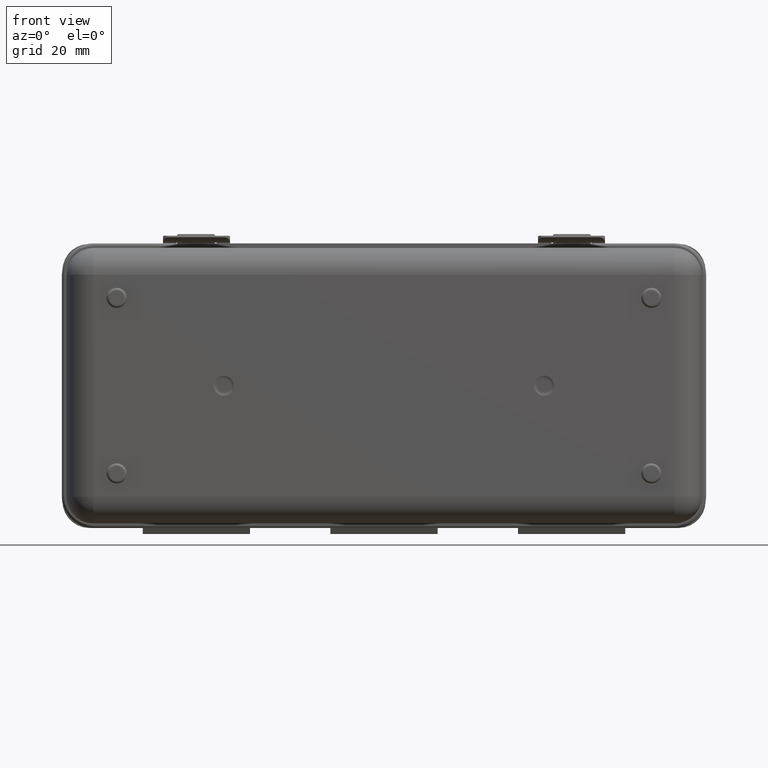
[diagram: clean part render]
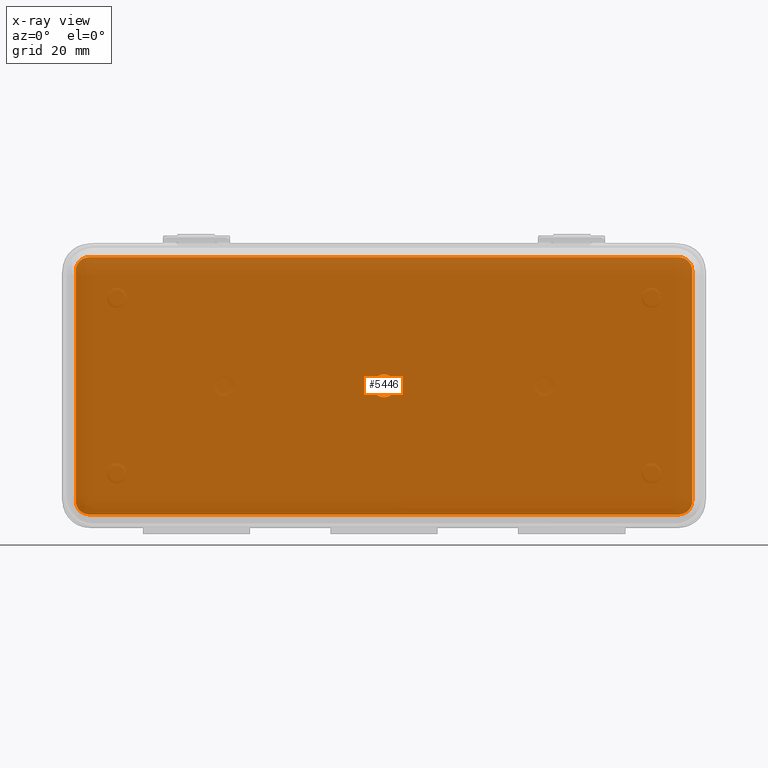
[diagram: x-ray — body ghosted, one internal face saturated and labeled with its STEP entity id]
A machine part, front view, then the same camera in x-ray: the body is ghosted and one INTERNAL B-rep face — a face not visible from any outside direction — is saturated and labeled: STEP entity #5446.
In plain terms, the highlighted planar face has unit normal (0, 1, 0).
Its self-contained STEP definition (entity closure, byte-faithful):
#98 = AXIS2_PLACEMENT_3D ( 'NONE', #7730, #4206, #444 ) ;
#216 = DIRECTION ( 'NONE',  ( 1.000000000000000000, 0.0000000000000000000, 0.0000000000000000000 ) ) ;
#444 = DIRECTION ( 'NONE',  ( 0.0000000000000000000, 0.0000000000000000000, -1.000000000000000000 ) ) ;
#549 = VECTOR ( 'NONE', #2951, 1000.000000000000000 ) ;
#618 = EDGE_CURVE ( 'NONE', #5555, #9155, #6171, .T. ) ;
#721 = VECTOR ( 'NONE', #6559, 1000.000000000000000 ) ;
#853 = CIRCLE ( 'NONE', #5448, 5.000000000000004441 ) ;
#937 = DIRECTION ( 'NONE',  ( 0.0000000000000000000, 0.0000000000000000000, -1.000000000000000000 ) ) ;
#972 = CARTESIAN_POINT ( 'NONE',  ( -115.0000000000000000, 1.399999999999999911, 43.00000000000000000 ) ) ;
#1058 = ORIENTED_EDGE ( 'NONE', *, *, #8441, .F. ) ;
#1185 = EDGE_CURVE ( 'NONE', #1956, #8203, #6481, .T. ) ;
#1240 = EDGE_CURVE ( 'NONE', #5655, #3201, #4703, .T. ) ;
#1301 = AXIS2_PLACEMENT_3D ( 'NONE', #5644, #2167, #5007 ) ;
#1679 = VERTEX_POINT ( 'NONE', #4241 ) ;
#1681 = ORIENTED_EDGE ( 'NONE', *, *, #2088, .F. ) ;
#1887 = DIRECTION ( 'NONE',  ( 0.0000000000000000000, 0.0000000000000000000, -1.000000000000000000 ) ) ;
#1930 = EDGE_CURVE ( 'NONE', #1679, #4632, #853, .T. ) ;
#1948 = ORIENTED_EDGE ( 'NONE', *, *, #3414, .F. ) ;
#1956 = VERTEX_POINT ( 'NONE', #9030 ) ;
#2088 = EDGE_CURVE ( 'NONE', #9155, #3576, #8654, .T. ) ;
#2167 = DIRECTION ( 'NONE',  ( 0.0000000000000000000, -1.000000000000000000, 0.0000000000000000000 ) ) ;
#2273 = LINE ( 'NONE', #8849, #6907 ) ;
#2589 = EDGE_CURVE ( 'NONE', #8203, #1956, #4727, .T. ) ;
#2765 = VERTEX_POINT ( 'NONE', #4510 ) ;
#2821 = ORIENTED_EDGE ( 'NONE', *, *, #1930, .F. ) ;
#2951 = DIRECTION ( 'NONE',  ( 0.0000000000000000000, -0.0000000000000000000, -1.000000000000000000 ) ) ;
#3059 = AXIS2_PLACEMENT_3D ( 'NONE', #5395, #8228, #937 ) ;
#3201 = VERTEX_POINT ( 'NONE', #5337 ) ;
#3267 = FACE_OUTER_BOUND ( 'NONE', #6236, .T. ) ;
#3271 = DIRECTION ( 'NONE',  ( 0.0000000000000000000, 0.0000000000000000000, -1.000000000000000000 ) ) ;
#3312 = CARTESIAN_POINT ( 'NONE',  ( -110.0000000000000000, 1.400000000000000133, -43.00000000000000000 ) ) ;
#3414 = EDGE_CURVE ( 'NONE', #3576, #2765, #5055, .T. ) ;
#3555 = CARTESIAN_POINT ( 'NONE',  ( 110.0000000000000000, 1.400000000000000133, 43.00000000000000000 ) ) ;
#3558 = VECTOR ( 'NONE', #216, 1000.000000000000000 ) ;
#3576 = VERTEX_POINT ( 'NONE', #7020 ) ;
#3730 = CARTESIAN_POINT ( 'NONE',  ( 114.9999999999999858, 1.399999999999999911, 0.0000000000000000000 ) ) ;
#3949 = CARTESIAN_POINT ( 'NONE',  ( 0.0000000000000000000, 1.399999999999999911, -48.00000000000000000 ) ) ;
#4032 = DIRECTION ( 'NONE',  ( 0.0000000000000000000, 0.0000000000000000000, -1.000000000000000000 ) ) ;
#4206 = DIRECTION ( 'NONE',  ( 0.0000000000000000000, -1.000000000000000000, 0.0000000000000000000 ) ) ;
#4241 = CARTESIAN_POINT ( 'NONE',  ( 114.9999999999999858, 1.399999999999999911, 43.00000000000000000 ) ) ;
#4510 = CARTESIAN_POINT ( 'NONE',  ( -110.0000000000000000, 1.399999999999999911, -48.00000000000000000 ) ) ;
#4632 = VERTEX_POINT ( 'NONE', #5635 ) ;
#4703 = CIRCLE ( 'NONE', #98, 5.000000000000004441 ) ;
#4727 = CIRCLE ( 'NONE', #1301, 4.250000000000000000 ) ;
#4968 = CARTESIAN_POINT ( 'NONE',  ( 109.9999999999999858, 1.399999999999999911, -48.00000000000000000 ) ) ;
#5007 = DIRECTION ( 'NONE',  ( 0.0000000000000000000, 0.0000000000000000000, -1.000000000000000000 ) ) ;
#5055 = CIRCLE ( 'NONE', #8158, 4.999999999999997335 ) ;
#5107 = DIRECTION ( 'NONE',  ( -1.000000000000000000, -0.0000000000000000000, -0.0000000000000000000 ) ) ;
#5218 = CARTESIAN_POINT ( 'NONE',  ( 0.0000000000000000000, 1.399999999999999911, 0.0000000000000000000 ) ) ;
#5240 = EDGE_LOOP ( 'NONE', ( #8758, #7732 ) ) ;
#5309 = DIRECTION ( 'NONE',  ( 0.0000000000000000000, -1.000000000000000000, 0.0000000000000000000 ) ) ;
#5337 = CARTESIAN_POINT ( 'NONE',  ( 114.9999999999999858, 1.399999999999999911, -43.00000000000000000 ) ) ;
#5343 = LINE ( 'NONE', #3949, #3558 ) ;
#5371 = DIRECTION ( 'NONE',  ( 0.0000000000000000000, -1.000000000000000000, 0.0000000000000000000 ) ) ;
#5395 = CARTESIAN_POINT ( 'NONE',  ( -110.0000000000000000, 1.400000000000000133, 43.00000000000000000 ) ) ;
#5446 = ADVANCED_FACE ( 'NONE', ( #6800, #3267 ), #5993, .F. ) ;
#5448 = AXIS2_PLACEMENT_3D ( 'NONE', #3555, #5371, #4032 ) ;
#5555 = VERTEX_POINT ( 'NONE', #6848 ) ;
#5635 = CARTESIAN_POINT ( 'NONE',  ( 109.9999999999999858, 1.400000000000000133, 48.00000000000000000 ) ) ;
#5644 = CARTESIAN_POINT ( 'NONE',  ( 0.0000000000000000000, 1.399999999999999911, 0.0000000000000000000 ) ) ;
#5655 = VERTEX_POINT ( 'NONE', #4968 ) ;
#5669 = EDGE_CURVE ( 'NONE', #3201, #1679, #8642, .T. ) ;
#5790 = EDGE_CURVE ( 'NONE', #2765, #5655, #5343, .T. ) ;
#5993 = PLANE ( 'NONE',  #8425 ) ;
#6079 = ORIENTED_EDGE ( 'NONE', *, *, #618, .F. ) ;
#6093 = DIRECTION ( 'NONE',  ( 0.0000000000000000000, -0.0000000000000000000, -1.000000000000000000 ) ) ;
#6171 = CIRCLE ( 'NONE', #3059, 5.000000000000004441 ) ;
#6236 = EDGE_LOOP ( 'NONE', ( #7080, #7725, #6744, #1948, #1681, #6079, #1058, #2821 ) ) ;
#6481 = CIRCLE ( 'NONE', #7520, 4.250000000000000000 ) ;
#6559 = DIRECTION ( 'NONE',  ( -0.0000000000000000000, 0.0000000000000000000, 1.000000000000000000 ) ) ;
#6744 = ORIENTED_EDGE ( 'NONE', *, *, #5790, .F. ) ;
#6800 = FACE_BOUND ( 'NONE', #5240, .T. ) ;
#6848 = CARTESIAN_POINT ( 'NONE',  ( -110.0000000000000000, 1.399999999999999911, 48.00000000000000000 ) ) ;
#6907 = VECTOR ( 'NONE', #5107, 1000.000000000000000 ) ;
#7020 = CARTESIAN_POINT ( 'NONE',  ( -114.9999999999999858, 1.399999999999999911, -43.00000000000000000 ) ) ;
#7080 = ORIENTED_EDGE ( 'NONE', *, *, #5669, .F. ) ;
#7171 = CARTESIAN_POINT ( 'NONE',  ( -115.0000000000000000, 1.399999999999999911, 0.0000000000000000000 ) ) ;
#7520 = AXIS2_PLACEMENT_3D ( 'NONE', #8245, #8989, #1887 ) ;
#7725 = ORIENTED_EDGE ( 'NONE', *, *, #1240, .F. ) ;
#7730 = CARTESIAN_POINT ( 'NONE',  ( 109.9999999999999858, 1.400000000000000133, -43.00000000000000000 ) ) ;
#7732 = ORIENTED_EDGE ( 'NONE', *, *, #1185, .T. ) ;
#8158 = AXIS2_PLACEMENT_3D ( 'NONE', #3312, #8750, #3271 ) ;
#8203 = VERTEX_POINT ( 'NONE', #9188 ) ;
#8228 = DIRECTION ( 'NONE',  ( 0.0000000000000000000, -1.000000000000000000, 0.0000000000000000000 ) ) ;
#8245 = CARTESIAN_POINT ( 'NONE',  ( 0.0000000000000000000, 1.399999999999999911, 0.0000000000000000000 ) ) ;
#8425 = AXIS2_PLACEMENT_3D ( 'NONE', #5218, #5309, #6093 ) ;
#8441 = EDGE_CURVE ( 'NONE', #4632, #5555, #2273, .T. ) ;
#8642 = LINE ( 'NONE', #3730, #721 ) ;
#8654 = LINE ( 'NONE', #7171, #549 ) ;
#8750 = DIRECTION ( 'NONE',  ( 0.0000000000000000000, -1.000000000000000000, 0.0000000000000000000 ) ) ;
#8758 = ORIENTED_EDGE ( 'NONE', *, *, #2589, .T. ) ;
#8849 = CARTESIAN_POINT ( 'NONE',  ( 0.0000000000000000000, 1.399999999999999911, 48.00000000000000000 ) ) ;
#8989 = DIRECTION ( 'NONE',  ( 0.0000000000000000000, -1.000000000000000000, 0.0000000000000000000 ) ) ;
#9030 = CARTESIAN_POINT ( 'NONE',  ( 5.204748896376250699E-16, 1.399999999999999911, -4.250000000000000000 ) ) ;
#9155 = VERTEX_POINT ( 'NONE', #972 ) ;
#9188 = CARTESIAN_POINT ( 'NONE',  ( 0.0000000000000000000, 1.399999999999999911, 4.250000000000000000 ) ) ;